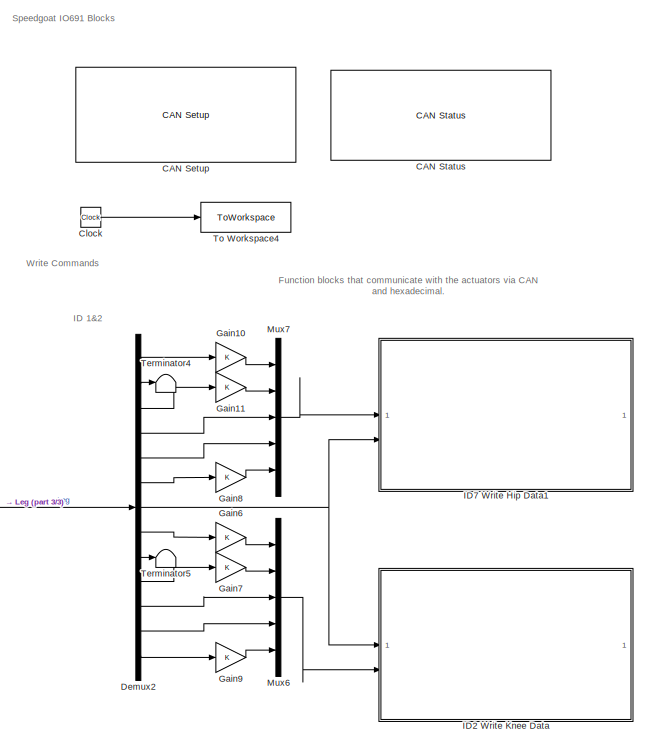
[diagram: root canvas - part 1/3, top right region]
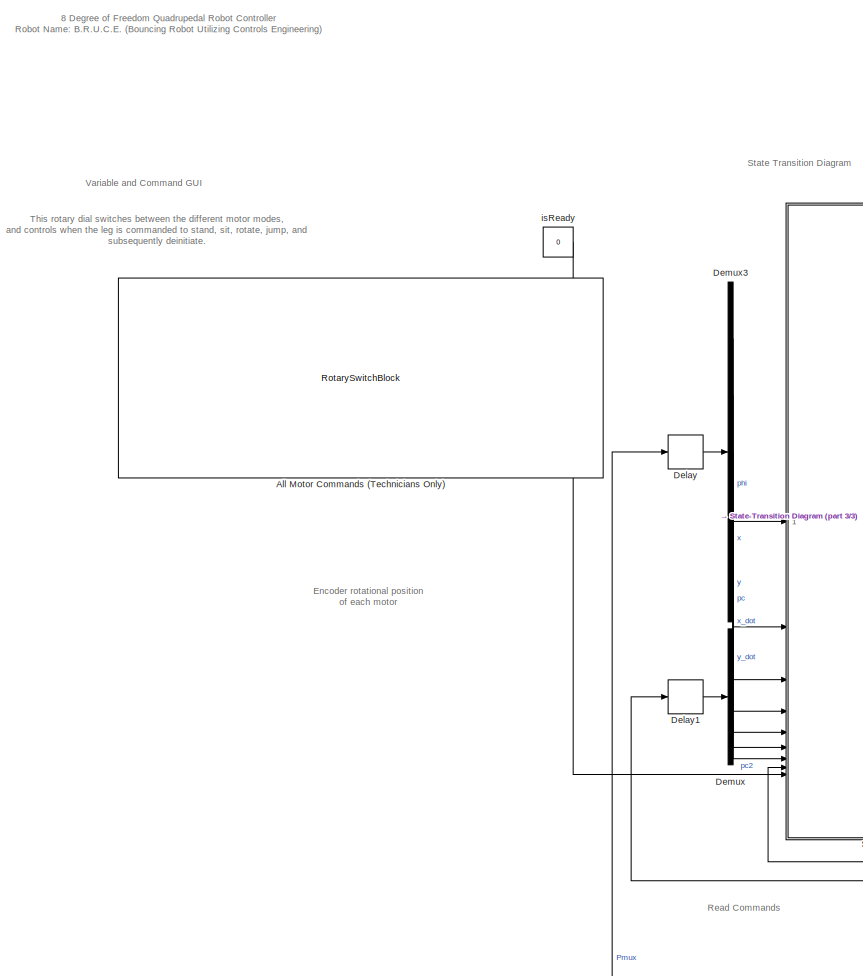
[diagram: root canvas - part 2/3, middle left region]
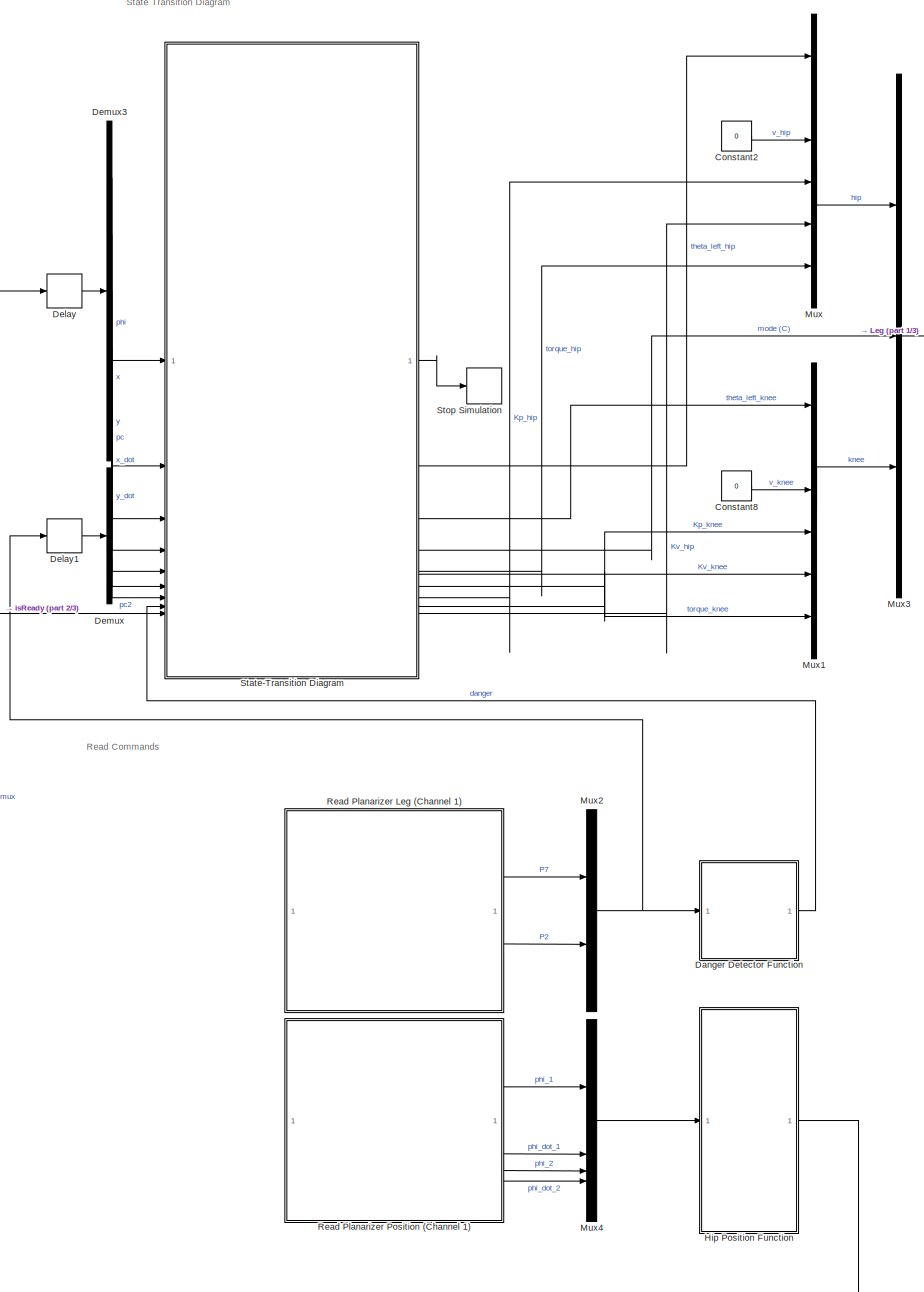
[diagram: root canvas - part 3/3, center side, full height]
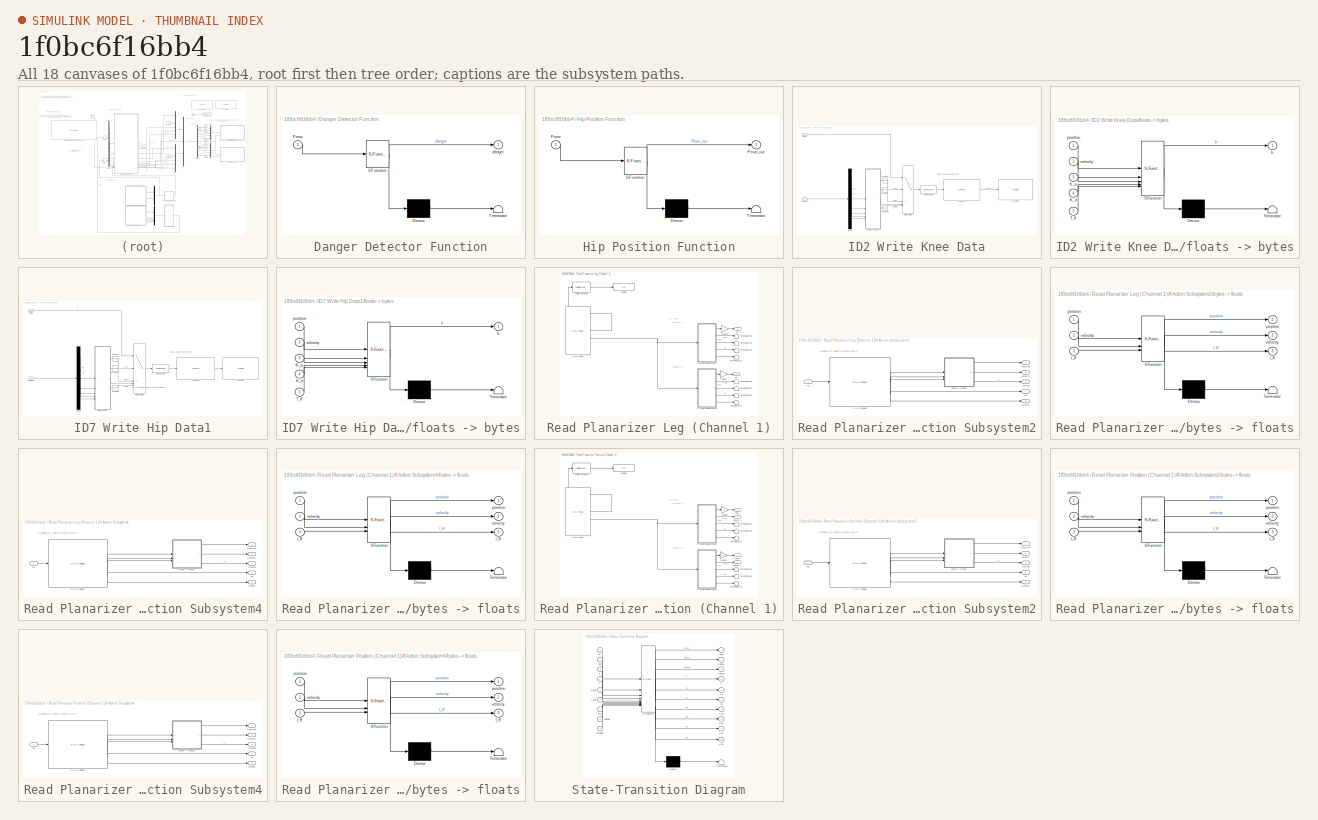
[diagram: thumbnail index - all 18 canvases of the model, root first then tree order]
MODEL slx_1f0bc6f16bb4
KIND model
CONFIG AbsTol = auto
CONFIG EnableMultiTasking = off
CONFIG FixedStep = 0.005
CONFIG MaxStep = auto
CONFIG MinStep = auto
CONFIG RelTol = 1e-3
CONFIG SampleTimeConstraint = Unconstrained
CONFIG SolverName = FixedStepAuto
CONFIG StartTime = 0.0
CONFIG StopTime = inf
BLOCK [RotarySwitchBlock] All Motor Commands (Technicians Only) 
BLOCK [Reference] CAN Setup   REF=speedgoatlib_IO691/Legacy/CAN Setup 
  SourceBlock = speedgoatlib_IO691/Legacy/CAN Setup
  SourceProductName = Simulink Real-Time: Speedgoat I/O Blockset
  SourceType = setup_IO691
BLOCK [Reference] CAN Status  REF=speedgoatlib_IO691/Legacy/CAN Status
  SourceBlock = speedgoatlib_IO691/Legacy/CAN Status
  SourceProductName = Simulink Real-Time: Speedgoat I/O Blockset
  SourceType = status_IO691
  UserDataPersistent = on
BLOCK [Clock] Clock
BLOCK [Constant] Constant2
  Value = 0
BLOCK [Constant] Constant8
  Value = 0
BLOCK [SubSystem] Danger Detector Function
  ErrorFcn = Stateflow.Translate.translate
  PermitHierarchicalResolution = ExplicitOnly
  SFBlockType = MATLAB Function
  TreatAsAtomicUnit = on
BLOCK [Demux] Danger Detector Function/ Demux 
  Outputs = 1
BLOCK [S-Function] Danger Detector Function/ SFunction 
  EnableBusSupport = on
  FunctionName = sf_sfun
  PortCounts = [1 2]
  SFcnIsStateOwnerBlock = off
  SFunctionDeploymentMode = off
  Tag = Stateflow S-Function 6
BLOCK [Terminator] Danger Detector Function/ Terminator 
BLOCK [Inport] Danger Detector Function/Pmux
BLOCK [Outport] Danger Detector Function/danger
BLOCK [Delay] Delay
  DelayLength = 1
  InputPortMap = u0
BLOCK [Delay] Delay1
  DelayLength = 1
  InputPortMap = u0
BLOCK [Demux] Demux
  Outputs = 2
BLOCK [Demux] Demux2
  Outputs = 13
BLOCK [Demux] Demux3
  Outputs = 5
BLOCK [Gain] Gain10
BLOCK [Gain] Gain11
BLOCK [Gain] Gain6
BLOCK [Gain] Gain7
BLOCK [Gain] Gain8
BLOCK [Gain] Gain9
BLOCK [SubSystem] Hip Position Function
  ErrorFcn = Stateflow.Translate.translate
  PermitHierarchicalResolution = ExplicitOnly
  SFBlockType = MATLAB Function
  TreatAsAtomicUnit = on
BLOCK [Demux] Hip Position Function/ Demux 
  Outputs = 1
BLOCK [S-Function] Hip Position Function/ SFunction 
  EnableBusSupport = on
  FunctionName = sf_sfun
  PortCounts = [1 2]
  SFcnIsStateOwnerBlock = off
  SFunctionDeploymentMode = off
  Tag = Stateflow S-Function 9
BLOCK [Terminator] Hip Position Function/ Terminator 
BLOCK [Inport] Hip Position Function/Pmux
BLOCK [Outport] Hip Position Function/Pmux_out
BLOCK [SubSystem] ID2 Write Knee Data
  TreatAsAtomicUnit = on
BLOCK [Reference] ID2 Write Knee Data/Byte Packing  REF=slrealtimeutilitieslib/Byte Packing
  SourceBlock = slrealtimeutilitieslib/Byte Packing
  SourceType = slrealtimebytepacking
BLOCK [Reference] ID2 Write Knee Data/CAN Pack1  REF=canmsglib/CAN Pack
  SourceBlock = canmsglib/CAN Pack
  SourceType = CAN Pack
BLOCK [Reference] ID2 Write Knee Data/CAN Write1  REF=speedgoatlib_IO691/Legacy/CAN Write
  SourceBlock = speedgoatlib_IO691/Legacy/CAN Write
  SourceProductName = Simulink Real-Time: Speedgoat I/O Blockset
  SourceType = write_IO691
BLOCK [Inport] ID2 Write Knee Data/Command
  Port = 2
BLOCK [Constant] ID2 Write Knee Data/Constant
  Value = [0xFF, 0xFF, 0xFF, 0xFF, 0xFF, 0xFF, 0xFF, 0xFE]
BLOCK [Constant] ID2 Write Knee Data/Constant1
  Value = [0xFF, 0xFF, 0xFF, 0xFF, 0xFF, 0xFF, 0xFF, 0xFC]
BLOCK [Constant] ID2 Write Knee Data/Constant2
  Value = [0xFF, 0xFF, 0xFF, 0xFF, 0xFF, 0xFF, 0xFF, 0xFD]
BLOCK [Demux] ID2 Write Knee Data/Demux
  Outputs = 5
BLOCK [Inport] ID2 Write Knee Data/Mode
BLOCK [MultiPortSwitch] ID2 Write Knee Data/Multiport Switch
  DiagnosticForDefault = None
  InputSameDT = off
  Inputs = 4
  SaturateOnIntegerOverflow = off
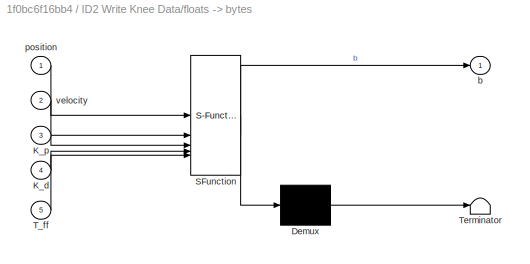
BLOCK [SubSystem] ID2 Write Knee Data/floats -> bytes
  ErrorFcn = Stateflow.Translate.translate
  PermitHierarchicalResolution = ExplicitOnly
  SFBlockType = MATLAB Function
  TreatAsAtomicUnit = on
BLOCK [Demux] ID2 Write Knee Data/floats -> bytes/ Demux 
  Outputs = 1
BLOCK [S-Function] ID2 Write Knee Data/floats -> bytes/ SFunction 
  EnableBusSupport = on
  FunctionName = sf_sfun
  PortCounts = [5 2]
  SFcnIsStateOwnerBlock = off
  SFunctionDeploymentMode = off
  Tag = Stateflow S-Function 13
BLOCK [Terminator] ID2 Write Knee Data/floats -> bytes/ Terminator 
BLOCK [Inport] ID2 Write Knee Data/floats -> bytes/K_d
  Port = 4
BLOCK [Inport] ID2 Write Knee Data/floats -> bytes/K_p
  Port = 3
BLOCK [Inport] ID2 Write Knee Data/floats -> bytes/T_ff
  Port = 5
BLOCK [Outport] ID2 Write Knee Data/floats -> bytes/b
BLOCK [Inport] ID2 Write Knee Data/floats -> bytes/position
BLOCK [Inport] ID2 Write Knee Data/floats -> bytes/velocity
  Port = 2
BLOCK [SubSystem] ID7 Write Hip Data1
  TreatAsAtomicUnit = on
BLOCK [Reference] ID7 Write Hip Data1/Byte Packing  REF=slrealtimeutilitieslib/Byte Packing
  SourceBlock = slrealtimeutilitieslib/Byte Packing
  SourceType = slrealtimebytepacking
BLOCK [Reference] ID7 Write Hip Data1/CAN Pack1  REF=canmsglib/CAN Pack
  SourceBlock = canmsglib/CAN Pack
  SourceType = CAN Pack
BLOCK [Reference] ID7 Write Hip Data1/CAN Write1  REF=speedgoatlib_IO691/Legacy/CAN Write
  SourceBlock = speedgoatlib_IO691/Legacy/CAN Write
  SourceProductName = Simulink Real-Time: Speedgoat I/O Blockset
  SourceType = write_IO691
BLOCK [Inport] ID7 Write Hip Data1/Command
BLOCK [Constant] ID7 Write Hip Data1/Constant
  Value = [0xFF, 0xFF, 0xFF, 0xFF, 0xFF, 0xFF, 0xFF, 0xFE]
BLOCK [Constant] ID7 Write Hip Data1/Constant1
  Value = [0xFF, 0xFF, 0xFF, 0xFF, 0xFF, 0xFF, 0xFF, 0xFC]
BLOCK [Constant] ID7 Write Hip Data1/Constant2
  Value = [0xFF, 0xFF, 0xFF, 0xFF, 0xFF, 0xFF, 0xFF, 0xFD]
BLOCK [Demux] ID7 Write Hip Data1/Demux
  Outputs = 5
BLOCK [Inport] ID7 Write Hip Data1/Mode
  Port = 2
BLOCK [MultiPortSwitch] ID7 Write Hip Data1/Multiport Switch
  DiagnosticForDefault = None
  InputSameDT = off
  Inputs = 4
  SaturateOnIntegerOverflow = off
BLOCK [SubSystem] ID7 Write Hip Data1/floats -> bytes
  ErrorFcn = Stateflow.Translate.translate
  PermitHierarchicalResolution = ExplicitOnly
  SFBlockType = MATLAB Function
  TreatAsAtomicUnit = on
BLOCK [Demux] ID7 Write Hip Data1/floats -> bytes/ Demux 
  Outputs = 1
BLOCK [S-Function] ID7 Write Hip Data1/floats -> bytes/ SFunction 
  EnableBusSupport = on
  FunctionName = sf_sfun
  PortCounts = [5 2]
  SFcnIsStateOwnerBlock = off
  SFunctionDeploymentMode = off
  Tag = Stateflow S-Function 4
BLOCK [Terminator] ID7 Write Hip Data1/floats -> bytes/ Terminator 
BLOCK [Inport] ID7 Write Hip Data1/floats -> bytes/K_d
  Port = 4
BLOCK [Inport] ID7 Write Hip Data1/floats -> bytes/K_p
  Port = 3
BLOCK [Inport] ID7 Write Hip Data1/floats -> bytes/T_ff
  Port = 5
BLOCK [Outport] ID7 Write Hip Data1/floats -> bytes/b
BLOCK [Inport] ID7 Write Hip Data1/floats -> bytes/position
BLOCK [Inport] ID7 Write Hip Data1/floats -> bytes/velocity
  Port = 2
BLOCK [Mux] Mux
  DisplayOption = bar
  Inputs = 6
BLOCK [Mux] Mux1
  DisplayOption = bar
  Inputs = 6
BLOCK [Mux] Mux2
  DisplayOption = bar
  Inputs = 2
BLOCK [Mux] Mux3
  DisplayOption = bar
  Inputs = 3
BLOCK [Mux] Mux4
  DisplayOption = bar
BLOCK [Mux] Mux6
  DisplayOption = bar
  Inputs = 5
BLOCK [Mux] Mux7
  DisplayOption = bar
  Inputs = 5
BLOCK [SubSystem] Read Planarizer Leg (Channel 1)
  TreatAsAtomicUnit = on
BLOCK [Reference] Read Planarizer Leg (Channel 1)/CAN Read  REF=speedgoatlib_IO691/Legacy/CAN Read
  SourceBlock = speedgoatlib_IO691/Legacy/CAN Read
  SourceProductName = Simulink Real-Time: Speedgoat I/O Blockset
  SourceType = read_IO691
BLOCK [Display] Read Planarizer Leg (Channel 1)/Display
  Decimation = 1
BLOCK [Gain] Read Planarizer Leg (Channel 1)/Gain29
BLOCK [Gain] Read Planarizer Leg (Channel 1)/Gain30
BLOCK [SubSystem] Read Planarizer Leg (Channel 1)/If Action Subsystem2
  TreatAsAtomicUnit = on
BLOCK [Reference] Read Planarizer Leg (Channel 1)/If Action Subsystem2/CAN Unpack  REF=canmsglib/CAN Unpack
  SourceBlock = canmsglib/CAN Unpack
  SourceType = CAN Unpack
BLOCK [Outport] Read Planarizer Leg (Channel 1)/If Action Subsystem2/Current
  Port = 3
BLOCK [Outport] Read Planarizer Leg (Channel 1)/If Action Subsystem2/ID
  Port = 4
BLOCK [Inport] Read Planarizer Leg (Channel 1)/If Action Subsystem2/In1
BLOCK [Outport] Read Planarizer Leg (Channel 1)/If Action Subsystem2/Position
BLOCK [Outport] Read Planarizer Leg (Channel 1)/If Action Subsystem2/Status
  Port = 5
BLOCK [Outport] Read Planarizer Leg (Channel 1)/If Action Subsystem2/Velocity
  Port = 2
BLOCK [SubSystem] Read Planarizer Leg (Channel 1)/If Action Subsystem2/bytes -> floats
  ErrorFcn = Stateflow.Translate.translate
  PermitHierarchicalResolution = ExplicitOnly
  SFBlockType = MATLAB Function
  TreatAsAtomicUnit = on
BLOCK [Demux] Read Planarizer Leg (Channel 1)/If Action Subsystem2/bytes -> floats/ Demux 
  Outputs = 1
BLOCK [S-Function] Read Planarizer Leg (Channel 1)/If Action Subsystem2/bytes -> floats/ SFunction 
  EnableBusSupport = on
  FunctionName = sf_sfun
  PortCounts = [3 4]
  SFcnIsStateOwnerBlock = off
  SFunctionDeploymentMode = off
  Tag = Stateflow S-Function 2
BLOCK [Terminator] Read Planarizer Leg (Channel 1)/If Action Subsystem2/bytes -> floats/ Terminator 
BLOCK [Outport] Read Planarizer Leg (Channel 1)/If Action Subsystem2/bytes -> floats/I_ff
  Port = 3
BLOCK [Inport] Read Planarizer Leg (Channel 1)/If Action Subsystem2/bytes -> floats/I_ff 
  Port = 3
BLOCK [Outport] Read Planarizer Leg (Channel 1)/If Action Subsystem2/bytes -> floats/position
BLOCK [Inport] Read Planarizer Leg (Channel 1)/If Action Subsystem2/bytes -> floats/position 
BLOCK [Outport] Read Planarizer Leg (Channel 1)/If Action Subsystem2/bytes -> floats/velocity
  Port = 2
BLOCK [Inport] Read Planarizer Leg (Channel 1)/If Action Subsystem2/bytes -> floats/velocity 
  Port = 2
BLOCK [SubSystem] Read Planarizer Leg (Channel 1)/If Action Subsystem4
  TreatAsAtomicUnit = on
BLOCK [Reference] Read Planarizer Leg (Channel 1)/If Action Subsystem4/CAN Unpack  REF=canmsglib/CAN Unpack
  SourceBlock = canmsglib/CAN Unpack
  SourceType = CAN Unpack
BLOCK [Outport] Read Planarizer Leg (Channel 1)/If Action Subsystem4/Current
  Port = 3
BLOCK [Outport] Read Planarizer Leg (Channel 1)/If Action Subsystem4/ID
  Port = 4
BLOCK [Inport] Read Planarizer Leg (Channel 1)/If Action Subsystem4/In1
BLOCK [Outport] Read Planarizer Leg (Channel 1)/If Action Subsystem4/Position
BLOCK [Outport] Read Planarizer Leg (Channel 1)/If Action Subsystem4/Status
  Port = 5
BLOCK [Outport] Read Planarizer Leg (Channel 1)/If Action Subsystem4/Velocity
  Port = 2
BLOCK [SubSystem] Read Planarizer Leg (Channel 1)/If Action Subsystem4/bytes -> floats
  ErrorFcn = Stateflow.Translate.translate
  PermitHierarchicalResolution = ExplicitOnly
  SFBlockType = MATLAB Function
  TreatAsAtomicUnit = on
BLOCK [Demux] Read Planarizer Leg (Channel 1)/If Action Subsystem4/bytes -> floats/ Demux 
  Outputs = 1
BLOCK [S-Function] Read Planarizer Leg (Channel 1)/If Action Subsystem4/bytes -> floats/ SFunction 
  EnableBusSupport = on
  FunctionName = sf_sfun
  PortCounts = [3 4]
  SFcnIsStateOwnerBlock = off
  SFunctionDeploymentMode = off
  Tag = Stateflow S-Function 1
BLOCK [Terminator] Read Planarizer Leg (Channel 1)/If Action Subsystem4/bytes -> floats/ Terminator 
BLOCK [Outport] Read Planarizer Leg (Channel 1)/If Action Subsystem4/bytes -> floats/I_ff
  Port = 3
BLOCK [Inport] Read Planarizer Leg (Channel 1)/If Action Subsystem4/bytes -> floats/I_ff 
  Port = 3
BLOCK [Outport] Read Planarizer Leg (Channel 1)/If Action Subsystem4/bytes -> floats/position
BLOCK [Inport] Read Planarizer Leg (Channel 1)/If Action Subsystem4/bytes -> floats/position 
BLOCK [Outport] Read Planarizer Leg (Channel 1)/If Action Subsystem4/bytes -> floats/velocity
  Port = 2
BLOCK [Inport] Read Planarizer Leg (Channel 1)/If Action Subsystem4/bytes -> floats/velocity 
  Port = 2
BLOCK [Outport] Read Planarizer Leg (Channel 1)/P2
  Port = 2
BLOCK [Outport] Read Planarizer Leg (Channel 1)/P7
BLOCK [Terminator] Read Planarizer Leg (Channel 1)/Terminator16
BLOCK [Terminator] Read Planarizer Leg (Channel 1)/Terminator17
BLOCK [Terminator] Read Planarizer Leg (Channel 1)/Terminator18
BLOCK [Terminator] Read Planarizer Leg (Channel 1)/Terminator19
BLOCK [Terminator] Read Planarizer Leg (Channel 1)/Terminator20
BLOCK [Terminator] Read Planarizer Leg (Channel 1)/Terminator21
BLOCK [Terminator] Read Planarizer Leg (Channel 1)/Terminator22
BLOCK [Terminator] Read Planarizer Leg (Channel 1)/Terminator23
BLOCK [WhileIterator] Read Planarizer Leg (Channel 1)/While Iterator
  MaxIters = -1
  ResetStates = reset
  ShowIterationPort = on
  WhileBlockType = do-while
BLOCK [SubSystem] Read Planarizer Position (Channel 1)
  TreatAsAtomicUnit = on
BLOCK [Reference] Read Planarizer Position (Channel 1)/CAN Read  REF=speedgoatlib_IO691/Legacy/CAN Read
  SourceBlock = speedgoatlib_IO691/Legacy/CAN Read
  SourceProductName = Simulink Real-Time: Speedgoat I/O Blockset
  SourceType = read_IO691
BLOCK [Display] Read Planarizer Position (Channel 1)/Display
  Decimation = 1
BLOCK [Gain] Read Planarizer Position (Channel 1)/Gain29
BLOCK [Gain] Read Planarizer Position (Channel 1)/Gain30
BLOCK [SubSystem] Read Planarizer Position (Channel 1)/If Action Subsystem2
  TreatAsAtomicUnit = on
BLOCK [Reference] Read Planarizer Position (Channel 1)/If Action Subsystem2/CAN Unpack  REF=canmsglib/CAN Unpack
  SourceBlock = canmsglib/CAN Unpack
  SourceType = CAN Unpack
BLOCK [Outport] Read Planarizer Position (Channel 1)/If Action Subsystem2/Current
  Port = 3
BLOCK [Outport] Read Planarizer Position (Channel 1)/If Action Subsystem2/ID
  Port = 4
BLOCK [Inport] Read Planarizer Position (Channel 1)/If Action Subsystem2/In1
BLOCK [Outport] Read Planarizer Position (Channel 1)/If Action Subsystem2/Position
BLOCK [Outport] Read Planarizer Position (Channel 1)/If Action Subsystem2/Status
  Port = 5
BLOCK [Outport] Read Planarizer Position (Channel 1)/If Action Subsystem2/Velocity
  Port = 2
BLOCK [SubSystem] Read Planarizer Position (Channel 1)/If Action Subsystem2/bytes -> floats
  ErrorFcn = Stateflow.Translate.translate
  PermitHierarchicalResolution = ExplicitOnly
  SFBlockType = MATLAB Function
  TreatAsAtomicUnit = on
BLOCK [Demux] Read Planarizer Position (Channel 1)/If Action Subsystem2/bytes -> floats/ Demux 
  Outputs = 1
BLOCK [S-Function] Read Planarizer Position (Channel 1)/If Action Subsystem2/bytes -> floats/ SFunction 
  EnableBusSupport = on
  FunctionName = sf_sfun
  PortCounts = [3 4]
  SFcnIsStateOwnerBlock = off
  SFunctionDeploymentMode = off
  Tag = Stateflow S-Function 3
BLOCK [Terminator] Read Planarizer Position (Channel 1)/If Action Subsystem2/bytes -> floats/ Terminator 
BLOCK [Outport] Read Planarizer Position (Channel 1)/If Action Subsystem2/bytes -> floats/I_ff
  Port = 3
BLOCK [Inport] Read Planarizer Position (Channel 1)/If Action Subsystem2/bytes -> floats/I_ff 
  Port = 3
BLOCK [Outport] Read Planarizer Position (Channel 1)/If Action Subsystem2/bytes -> floats/position
BLOCK [Inport] Read Planarizer Position (Channel 1)/If Action Subsystem2/bytes -> floats/position 
BLOCK [Outport] Read Planarizer Position (Channel 1)/If Action Subsystem2/bytes -> floats/velocity
  Port = 2
BLOCK [Inport] Read Planarizer Position (Channel 1)/If Action Subsystem2/bytes -> floats/velocity 
  Port = 2
BLOCK [SubSystem] Read Planarizer Position (Channel 1)/If Action Subsystem4
  TreatAsAtomicUnit = on
BLOCK [Reference] Read Planarizer Position (Channel 1)/If Action Subsystem4/CAN Unpack  REF=canmsglib/CAN Unpack
  SourceBlock = canmsglib/CAN Unpack
  SourceType = CAN Unpack
BLOCK [Outport] Read Planarizer Position (Channel 1)/If Action Subsystem4/Current
  Port = 3
BLOCK [Outport] Read Planarizer Position (Channel 1)/If Action Subsystem4/ID
  Port = 4
BLOCK [Inport] Read Planarizer Position (Channel 1)/If Action Subsystem4/In1
BLOCK [Outport] Read Planarizer Position (Channel 1)/If Action Subsystem4/Position
BLOCK [Outport] Read Planarizer Position (Channel 1)/If Action Subsystem4/Status
  Port = 5
BLOCK [Outport] Read Planarizer Position (Channel 1)/If Action Subsystem4/Velocity
  Port = 2
BLOCK [SubSystem] Read Planarizer Position (Channel 1)/If Action Subsystem4/bytes -> floats
  ErrorFcn = Stateflow.Translate.translate
  PermitHierarchicalResolution = ExplicitOnly
  SFBlockType = MATLAB Function
  TreatAsAtomicUnit = on
BLOCK [Demux] Read Planarizer Position (Channel 1)/If Action Subsystem4/bytes -> floats/ Demux 
  Outputs = 1
BLOCK [S-Function] Read Planarizer Position (Channel 1)/If Action Subsystem4/bytes -> floats/ SFunction 
  EnableBusSupport = on
  FunctionName = sf_sfun
  PortCounts = [3 4]
  SFcnIsStateOwnerBlock = off
  SFunctionDeploymentMode = off
  Tag = Stateflow S-Function 5
BLOCK [Terminator] Read Planarizer Position (Channel 1)/If Action Subsystem4/bytes -> floats/ Terminator 
BLOCK [Outport] Read Planarizer Position (Channel 1)/If Action Subsystem4/bytes -> floats/I_ff
  Port = 3
BLOCK [Inport] Read Planarizer Position (Channel 1)/If Action Subsystem4/bytes -> floats/I_ff 
  Port = 3
BLOCK [Outport] Read Planarizer Position (Channel 1)/If Action Subsystem4/bytes -> floats/position
BLOCK [Inport] Read Planarizer Position (Channel 1)/If Action Subsystem4/bytes -> floats/position 
BLOCK [Outport] Read Planarizer Position (Channel 1)/If Action Subsystem4/bytes -> floats/velocity
  Port = 2
BLOCK [Inport] Read Planarizer Position (Channel 1)/If Action Subsystem4/bytes -> floats/velocity 
  Port = 2
BLOCK [Terminator] Read Planarizer Position (Channel 1)/Terminator16
BLOCK [Terminator] Read Planarizer Position (Channel 1)/Terminator17
BLOCK [Terminator] Read Planarizer Position (Channel 1)/Terminator19
BLOCK [Terminator] Read Planarizer Position (Channel 1)/Terminator20
BLOCK [Terminator] Read Planarizer Position (Channel 1)/Terminator21
BLOCK [Terminator] Read Planarizer Position (Channel 1)/Terminator23
BLOCK [WhileIterator] Read Planarizer Position (Channel 1)/While Iterator
  MaxIters = -1
  ResetStates = reset
  ShowIterationPort = on
  WhileBlockType = do-while
BLOCK [Outport] Read Planarizer Position (Channel 1)/phi_1
BLOCK [Outport] Read Planarizer Position (Channel 1)/phi_2
  Port = 3
BLOCK [Outport] Read Planarizer Position (Channel 1)/phi_dot_1
  Port = 2
BLOCK [Outport] Read Planarizer Position (Channel 1)/phi_dot_2
  Port = 4
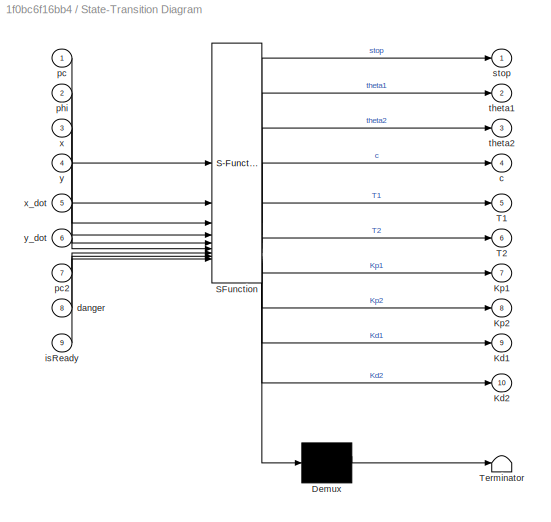
BLOCK [SubSystem] State-Transition Diagram
  ErrorFcn = Stateflow.Translate.translate
  PermitHierarchicalResolution = ExplicitOnly
  PortSchema = {"entries":[{"content":{"sides":[{"content":{"connectorIds":["In9","In2","In3","In4","In5","In6","In1","In7","In8"]},"type":"ConnectorPlacement.EquallySpacedRectSide","uuid":"09499f21-f50c-4ce4-914e-8b9942bcc246"},{"content":{"connectorIds":["Out2","Out7","Out9","Out5","Out4","Out1","Out3","Out8","Out10","Out6"],"side":"RIGHT"},"type":"ConnectorPlacement.EquallySpacedRectSide","uuid":"b935e908-ace...<+334ch>
  SFBlockType = Chart
  TreatAsAtomicUnit = on
BLOCK [Demux] State-Transition Diagram/ Demux 
  Outputs = 1
BLOCK [S-Function] State-Transition Diagram/ SFunction 
  EnableBusSupport = on
  FunctionName = sf_sfun
  PortCounts = [9 11]
  SFcnIsStateOwnerBlock = off
  SFunctionDeploymentMode = off
  Tag = Stateflow S-Function 8
BLOCK [Terminator] State-Transition Diagram/ Terminator 
BLOCK [Outport] State-Transition Diagram/Kd1
  Port = 9
BLOCK [Outport] State-Transition Diagram/Kd2
  Port = 10
BLOCK [Outport] State-Transition Diagram/Kp1
  Port = 7
BLOCK [Outport] State-Transition Diagram/Kp2
  Port = 8
BLOCK [Outport] State-Transition Diagram/T1
  Port = 5
BLOCK [Outport] State-Transition Diagram/T2
  Port = 6
BLOCK [Outport] State-Transition Diagram/c
  Port = 4
BLOCK [Inport] State-Transition Diagram/danger
  Port = 8
BLOCK [Inport] State-Transition Diagram/isReady
  Port = 9
BLOCK [Inport] State-Transition Diagram/pc
BLOCK [Inport] State-Transition Diagram/pc2
  Port = 7
BLOCK [Inport] State-Transition Diagram/phi
  Port = 2
BLOCK [Outport] State-Transition Diagram/stop
BLOCK [Outport] State-Transition Diagram/theta1
  Port = 2
BLOCK [Outport] State-Transition Diagram/theta2
  Port = 3
BLOCK [Inport] State-Transition Diagram/x
  Port = 3
BLOCK [Inport] State-Transition Diagram/x_dot
  Port = 5
BLOCK [Inport] State-Transition Diagram/y
  Port = 4
BLOCK [Inport] State-Transition Diagram/y_dot
  Port = 6
BLOCK [Stop] Stop Simulation
BLOCK [Terminator] Terminator4
BLOCK [Terminator] Terminator5
BLOCK [ToWorkspace] To Workspace4
  FixptAsFi = on
  MaxDataPoints = inf
  SampleTime = -1
  VariableName = timeout
BLOCK [Constant] isReady
  Value = 0
ANNOTATION (root): State Transition Diagram
ANNOTATION (root): 8 Degree of Freedom Quadrupedal Robot Controller Robot Name: B.R.U.C.E. (Bouncing Robot Utilizing Controls Engineering)
ANNOTATION (root): Encoder rotational position of each motor
ANNOTATION (root): Function blocks that communicate with the actuators via CAN and hexadecimal.
ANNOTATION (root): ID 1&2
ANNOTATION (root): Read Commands
ANNOTATION (root): Speedgoat IO691 Blocks
ANNOTATION (root): This rotary dial switches between the different motor modes, and controls when the leg is commanded to stand, sit, rotate, jump, and subsequently deinitiate.
ANNOTATION (root): Variable and Command GUI
ANNOTATION (root): Write Commands
ANNOTATION ID2 Write Knee Data: Standard ID Needs to Match Can ID
ANNOTATION ID7 Write Hip Data1: Converts inputted data to an 8-bit unsigned integer
ANNOTATION ID7 Write Hip Data1: Standard ID Needs to Match Can ID
ANNOTATION Read Planarizer Leg (Channel 1): HIP ID 7
ANNOTATION Read Planarizer Leg (Channel 1): ID 7 & 2
ANNOTATION Read Planarizer Leg (Channel 1): KNEE ID 2
ANNOTATION Read Planarizer Leg (Channel 1)/If Action Subsystem2: Standard ID Needs to Match Can ID
ANNOTATION Read Planarizer Leg (Channel 1)/If Action Subsystem4: Standard ID Needs to Match Can ID
ANNOTATION Read Planarizer Position (Channel 1): HIP ID 7
ANNOTATION Read Planarizer Position (Channel 1): ID 1 & 3
ANNOTATION Read Planarizer Position (Channel 1): KNEE ID 2
ANNOTATION Read Planarizer Position (Channel 1)/If Action Subsystem2: Standard ID Needs to Match Can ID
ANNOTATION Read Planarizer Position (Channel 1)/If Action Subsystem4: Standard ID Needs to Match Can ID
LINE Clock:1 -> To Workspace4:1
LINE Constant2:1 -> Mux:3
LINE Constant8:1 -> Mux1:3
LINE Danger Detector Function:1 -> State-Transition Diagram:8
LINE Delay1:1 -> Demux:1
LINE Delay:1 -> Demux3:1
LINE Demux2:1 -> Gain10:1
LINE Demux2:10 -> Gain7:1
LINE Demux2:11 -> Mux6:3
LINE Demux2:12 -> Mux6:4
LINE Demux2:13 -> Gain9:1
LINE Demux2:2 -> Terminator4:1
LINE Demux2:3 -> Gain11:1
LINE Demux2:4 -> Mux7:3
LINE Demux2:5 -> Mux7:4
LINE Demux2:6 -> Gain8:1
NET Demux2:7 -> ID2 Write Knee Data:1, ID7 Write Hip Data1:2
LINE Demux2:8 -> Gain6:1
LINE Demux2:9 -> Terminator5:1
LINE Demux3:1 -> State-Transition Diagram:2
LINE Demux3:2 -> State-Transition Diagram:3
LINE Demux3:3 -> State-Transition Diagram:4
LINE Demux3:4 -> State-Transition Diagram:5
LINE Demux3:5 -> State-Transition Diagram:6
LINE Demux:1 -> State-Transition Diagram:1
LINE Demux:2 -> State-Transition Diagram:7
LINE Gain10:1 -> Mux7:1
LINE Gain11:1 -> Mux7:2
LINE Gain6:1 -> Mux6:1
LINE Gain7:1 -> Mux6:2
LINE Gain8:1 -> Mux7:5
LINE Gain9:1 -> Mux6:5
LINE Hip Position Function:1 -> Delay:1
LINE ID2 Write Knee Data/Byte Packing:1 -> ID2 Write Knee Data/CAN Pack1:1
LINE ID2 Write Knee Data/CAN Pack1:1 -> ID2 Write Knee Data/CAN Write1:1
LINE ID2 Write Knee Data/Command:1 -> ID2 Write Knee Data/Demux:1
LINE ID2 Write Knee Data/Constant1:1 -> ID2 Write Knee Data/Multiport Switch:3
LINE ID2 Write Knee Data/Constant2:1 -> ID2 Write Knee Data/Multiport Switch:5
LINE ID2 Write Knee Data/Constant:1 -> ID2 Write Knee Data/Multiport Switch:2
LINE ID2 Write Knee Data/Demux:1 -> ID2 Write Knee Data/floats -> bytes:1
LINE ID2 Write Knee Data/Demux:2 -> ID2 Write Knee Data/floats -> bytes:2
LINE ID2 Write Knee Data/Demux:3 -> ID2 Write Knee Data/floats -> bytes:3
LINE ID2 Write Knee Data/Demux:4 -> ID2 Write Knee Data/floats -> bytes:4
LINE ID2 Write Knee Data/Demux:5 -> ID2 Write Knee Data/floats -> bytes:5
LINE ID2 Write Knee Data/Mode:1 -> ID2 Write Knee Data/Multiport Switch:1
LINE ID2 Write Knee Data/Multiport Switch:1 -> ID2 Write Knee Data/Byte Packing:1
LINE ID2 Write Knee Data/floats -> bytes:1 -> ID2 Write Knee Data/Multiport Switch:4
LINE ID7 Write Hip Data1/Byte Packing:1 -> ID7 Write Hip Data1/CAN Pack1:1
LINE ID7 Write Hip Data1/CAN Pack1:1 -> ID7 Write Hip Data1/CAN Write1:1
LINE ID7 Write Hip Data1/Command:1 -> ID7 Write Hip Data1/Demux:1
LINE ID7 Write Hip Data1/Constant1:1 -> ID7 Write Hip Data1/Multiport Switch:3
LINE ID7 Write Hip Data1/Constant2:1 -> ID7 Write Hip Data1/Multiport Switch:5
LINE ID7 Write Hip Data1/Constant:1 -> ID7 Write Hip Data1/Multiport Switch:2
LINE ID7 Write Hip Data1/Demux:1 -> ID7 Write Hip Data1/floats -> bytes:1
LINE ID7 Write Hip Data1/Demux:2 -> ID7 Write Hip Data1/floats -> bytes:2
LINE ID7 Write Hip Data1/Demux:3 -> ID7 Write Hip Data1/floats -> bytes:3
LINE ID7 Write Hip Data1/Demux:4 -> ID7 Write Hip Data1/floats -> bytes:4
LINE ID7 Write Hip Data1/Demux:5 -> ID7 Write Hip Data1/floats -> bytes:5
LINE ID7 Write Hip Data1/Mode:1 -> ID7 Write Hip Data1/Multiport Switch:1
LINE ID7 Write Hip Data1/Multiport Switch:1 -> ID7 Write Hip Data1/Byte Packing:1
LINE ID7 Write Hip Data1/floats -> bytes:1 -> ID7 Write Hip Data1/Multiport Switch:4
LINE Mux1:1 -> Mux3:3
NET Mux2:1 -> Danger Detector Function:1, Delay1:1
LINE Mux3:1 -> Demux2:1
LINE Mux4:1 -> Hip Position Function:1
LINE Mux6:1 -> ID2 Write Knee Data:2
LINE Mux7:1 -> ID7 Write Hip Data1:1
LINE Mux:1 -> Mux3:1
LINE Read Planarizer Leg (Channel 1)/CAN Read:1 -> Read Planarizer Leg (Channel 1)/While Iterator:1
NET Read Planarizer Leg (Channel 1)/CAN Read:2 -> Read Planarizer Leg (Channel 1)/If Action Subsystem2:1, Read Planarizer Leg (Channel 1)/If Action Subsystem4:1
LINE Read Planarizer Leg (Channel 1)/Gain29:1 -> Read Planarizer Leg (Channel 1)/P7:1
LINE Read Planarizer Leg (Channel 1)/Gain30:1 -> Read Planarizer Leg (Channel 1)/P2:1
LINE Read Planarizer Leg (Channel 1)/If Action Subsystem2/CAN Unpack:1 -> Read Planarizer Leg (Channel 1)/If Action Subsystem2/bytes -> floats:1
LINE Read Planarizer Leg (Channel 1)/If Action Subsystem2/CAN Unpack:2 -> Read Planarizer Leg (Channel 1)/If Action Subsystem2/bytes -> floats:2
LINE Read Planarizer Leg (Channel 1)/If Action Subsystem2/CAN Unpack:3 -> Read Planarizer Leg (Channel 1)/If Action Subsystem2/bytes -> floats:3
LINE Read Planarizer Leg (Channel 1)/If Action Subsystem2/CAN Unpack:4 -> Read Planarizer Leg (Channel 1)/If Action Subsystem2/ID:1
LINE Read Planarizer Leg (Channel 1)/If Action Subsystem2/CAN Unpack:5 -> Read Planarizer Leg (Channel 1)/If Action Subsystem2/Status:1
LINE Read Planarizer Leg (Channel 1)/If Action Subsystem2/In1:1 -> Read Planarizer Leg (Channel 1)/If Action Subsystem2/CAN Unpack:1
LINE Read Planarizer Leg (Channel 1)/If Action Subsystem2/bytes -> floats:1 -> Read Planarizer Leg (Channel 1)/If Action Subsystem2/Position:1
LINE Read Planarizer Leg (Channel 1)/If Action Subsystem2/bytes -> floats:2 -> Read Planarizer Leg (Channel 1)/If Action Subsystem2/Velocity:1
LINE Read Planarizer Leg (Channel 1)/If Action Subsystem2/bytes -> floats:3 -> Read Planarizer Leg (Channel 1)/If Action Subsystem2/Current:1
LINE Read Planarizer Leg (Channel 1)/If Action Subsystem2:1 -> Read Planarizer Leg (Channel 1)/Gain30:1
LINE Read Planarizer Leg (Channel 1)/If Action Subsystem2:2 -> Read Planarizer Leg (Channel 1)/Terminator18:1
LINE Read Planarizer Leg (Channel 1)/If Action Subsystem2:3 -> Read Planarizer Leg (Channel 1)/Terminator19:1
LINE Read Planarizer Leg (Channel 1)/If Action Subsystem2:4 -> Read Planarizer Leg (Channel 1)/Terminator20:1
LINE Read Planarizer Leg (Channel 1)/If Action Subsystem2:5 -> Read Planarizer Leg (Channel 1)/Terminator21:1
LINE Read Planarizer Leg (Channel 1)/If Action Subsystem4/CAN Unpack:1 -> Read Planarizer Leg (Channel 1)/If Action Subsystem4/bytes -> floats:1
LINE Read Planarizer Leg (Channel 1)/If Action Subsystem4/CAN Unpack:2 -> Read Planarizer Leg (Channel 1)/If Action Subsystem4/bytes -> floats:2
LINE Read Planarizer Leg (Channel 1)/If Action Subsystem4/CAN Unpack:3 -> Read Planarizer Leg (Channel 1)/If Action Subsystem4/bytes -> floats:3
LINE Read Planarizer Leg (Channel 1)/If Action Subsystem4/CAN Unpack:4 -> Read Planarizer Leg (Channel 1)/If Action Subsystem4/ID:1
LINE Read Planarizer Leg (Channel 1)/If Action Subsystem4/CAN Unpack:5 -> Read Planarizer Leg (Channel 1)/If Action Subsystem4/Status:1
LINE Read Planarizer Leg (Channel 1)/If Action Subsystem4/In1:1 -> Read Planarizer Leg (Channel 1)/If Action Subsystem4/CAN Unpack:1
LINE Read Planarizer Leg (Channel 1)/If Action Subsystem4/bytes -> floats:1 -> Read Planarizer Leg (Channel 1)/If Action Subsystem4/Position:1
LINE Read Planarizer Leg (Channel 1)/If Action Subsystem4/bytes -> floats:2 -> Read Planarizer Leg (Channel 1)/If Action Subsystem4/Velocity:1
LINE Read Planarizer Leg (Channel 1)/If Action Subsystem4/bytes -> floats:3 -> Read Planarizer Leg (Channel 1)/If Action Subsystem4/Current:1
LINE Read Planarizer Leg (Channel 1)/If Action Subsystem4:1 -> Read Planarizer Leg (Channel 1)/Gain29:1
LINE Read Planarizer Leg (Channel 1)/If Action Subsystem4:2 -> Read Planarizer Leg (Channel 1)/Terminator22:1
LINE Read Planarizer Leg (Channel 1)/If Action Subsystem4:3 -> Read Planarizer Leg (Channel 1)/Terminator23:1
LINE Read Planarizer Leg (Channel 1)/If Action Subsystem4:4 -> Read Planarizer Leg (Channel 1)/Terminator16:1
LINE Read Planarizer Leg (Channel 1)/If Action Subsystem4:5 -> Read Planarizer Leg (Channel 1)/Terminator17:1
LINE Read Planarizer Leg (Channel 1)/While Iterator:1 -> Read Planarizer Leg (Channel 1)/Display:1
LINE Read Planarizer Leg (Channel 1):1 -> Mux2:1
LINE Read Planarizer Leg (Channel 1):2 -> Mux2:2
LINE Read Planarizer Position (Channel 1)/CAN Read:1 -> Read Planarizer Position (Channel 1)/While Iterator:1
NET Read Planarizer Position (Channel 1)/CAN Read:2 -> Read Planarizer Position (Channel 1)/If Action Subsystem2:1, Read Planarizer Position (Channel 1)/If Action Subsystem4:1
LINE Read Planarizer Position (Channel 1)/Gain29:1 -> Read Planarizer Position (Channel 1)/phi_1:1
LINE Read Planarizer Position (Channel 1)/Gain30:1 -> Read Planarizer Position (Channel 1)/phi_2:1
LINE Read Planarizer Position (Channel 1)/If Action Subsystem2/CAN Unpack:1 -> Read Planarizer Position (Channel 1)/If Action Subsystem2/bytes -> floats:1
LINE Read Planarizer Position (Channel 1)/If Action Subsystem2/CAN Unpack:2 -> Read Planarizer Position (Channel 1)/If Action Subsystem2/bytes -> floats:2
LINE Read Planarizer Position (Channel 1)/If Action Subsystem2/CAN Unpack:3 -> Read Planarizer Position (Channel 1)/If Action Subsystem2/bytes -> floats:3
LINE Read Planarizer Position (Channel 1)/If Action Subsystem2/CAN Unpack:4 -> Read Planarizer Position (Channel 1)/If Action Subsystem2/ID:1
LINE Read Planarizer Position (Channel 1)/If Action Subsystem2/CAN Unpack:5 -> Read Planarizer Position (Channel 1)/If Action Subsystem2/Status:1
LINE Read Planarizer Position (Channel 1)/If Action Subsystem2/In1:1 -> Read Planarizer Position (Channel 1)/If Action Subsystem2/CAN Unpack:1
LINE Read Planarizer Position (Channel 1)/If Action Subsystem2/bytes -> floats:1 -> Read Planarizer Position (Channel 1)/If Action Subsystem2/Position:1
LINE Read Planarizer Position (Channel 1)/If Action Subsystem2/bytes -> floats:2 -> Read Planarizer Position (Channel 1)/If Action Subsystem2/Velocity:1
LINE Read Planarizer Position (Channel 1)/If Action Subsystem2/bytes -> floats:3 -> Read Planarizer Position (Channel 1)/If Action Subsystem2/Current:1
LINE Read Planarizer Position (Channel 1)/If Action Subsystem2:1 -> Read Planarizer Position (Channel 1)/Gain30:1
LINE Read Planarizer Position (Channel 1)/If Action Subsystem2:2 -> Read Planarizer Position (Channel 1)/phi_dot_2:1
LINE Read Planarizer Position (Channel 1)/If Action Subsystem2:3 -> Read Planarizer Position (Channel 1)/Terminator19:1
LINE Read Planarizer Position (Channel 1)/If Action Subsystem2:4 -> Read Planarizer Position (Channel 1)/Terminator20:1
LINE Read Planarizer Position (Channel 1)/If Action Subsystem2:5 -> Read Planarizer Position (Channel 1)/Terminator21:1
LINE Read Planarizer Position (Channel 1)/If Action Subsystem4/CAN Unpack:1 -> Read Planarizer Position (Channel 1)/If Action Subsystem4/bytes -> floats:1
LINE Read Planarizer Position (Channel 1)/If Action Subsystem4/CAN Unpack:2 -> Read Planarizer Position (Channel 1)/If Action Subsystem4/bytes -> floats:2
LINE Read Planarizer Position (Channel 1)/If Action Subsystem4/CAN Unpack:3 -> Read Planarizer Position (Channel 1)/If Action Subsystem4/bytes -> floats:3
LINE Read Planarizer Position (Channel 1)/If Action Subsystem4/CAN Unpack:4 -> Read Planarizer Position (Channel 1)/If Action Subsystem4/ID:1
LINE Read Planarizer Position (Channel 1)/If Action Subsystem4/CAN Unpack:5 -> Read Planarizer Position (Channel 1)/If Action Subsystem4/Status:1
LINE Read Planarizer Position (Channel 1)/If Action Subsystem4/In1:1 -> Read Planarizer Position (Channel 1)/If Action Subsystem4/CAN Unpack:1
LINE Read Planarizer Position (Channel 1)/If Action Subsystem4/bytes -> floats:1 -> Read Planarizer Position (Channel 1)/If Action Subsystem4/Position:1
LINE Read Planarizer Position (Channel 1)/If Action Subsystem4/bytes -> floats:2 -> Read Planarizer Position (Channel 1)/If Action Subsystem4/Velocity:1
LINE Read Planarizer Position (Channel 1)/If Action Subsystem4/bytes -> floats:3 -> Read Planarizer Position (Channel 1)/If Action Subsystem4/Current:1
LINE Read Planarizer Position (Channel 1)/If Action Subsystem4:1 -> Read Planarizer Position (Channel 1)/Gain29:1
LINE Read Planarizer Position (Channel 1)/If Action Subsystem4:2 -> Read Planarizer Position (Channel 1)/phi_dot_1:1
LINE Read Planarizer Position (Channel 1)/If Action Subsystem4:3 -> Read Planarizer Position (Channel 1)/Terminator23:1
LINE Read Planarizer Position (Channel 1)/If Action Subsystem4:4 -> Read Planarizer Position (Channel 1)/Terminator16:1
LINE Read Planarizer Position (Channel 1)/If Action Subsystem4:5 -> Read Planarizer Position (Channel 1)/Terminator17:1
LINE Read Planarizer Position (Channel 1)/While Iterator:1 -> Read Planarizer Position (Channel 1)/Display:1
LINE Read Planarizer Position (Channel 1):1 -> Mux4:1
LINE Read Planarizer Position (Channel 1):2 -> Mux4:2
LINE Read Planarizer Position (Channel 1):3 -> Mux4:3
LINE Read Planarizer Position (Channel 1):4 -> Mux4:4
LINE State-Transition Diagram:1 -> Stop Simulation:1
LINE State-Transition Diagram:10 -> Mux1:5
LINE State-Transition Diagram:2 -> Mux:1
LINE State-Transition Diagram:3 -> Mux1:1
LINE State-Transition Diagram:4 -> Mux3:2
LINE State-Transition Diagram:5 -> Mux:6
LINE State-Transition Diagram:6 -> Mux1:6
LINE State-Transition Diagram:7 -> Mux:4
LINE State-Transition Diagram:8 -> Mux1:4
LINE State-Transition Diagram:9 -> Mux:5
LINE isReady:1 -> State-Transition Diagram:9
note: NET lines group one-source signal fan-out (src -> all destinations, sorted); 1:1 wires keep LINE
CHART Read Planarizer Leg (Channel 1)/If Action
Subsystem4/bytes -> floats states=1 transitions=1
  STATE_LABEL 'eML_blk_kernel()'
  STATE_LABEL 'SCRIPT:\nfunction [position, velocity, I_ff] = fcn(position, velocity, I_ff)\n\nP_MIN  =-95.5;  % [rad]\nP_MAX  = 95.5;  % [rad]\nV_MIN  =-45;    % [rad/s]\nV_MAX  = 45;    % [rad/s]\nI_MIN  =-40;    % []\nI_MAX  = 40;    % []\n\nposition = position*(P_MAX  - P_MIN)/65535+ P_MIN;\nvelocity = velocity*(V_MAX  - V_MIN)/4095 + V_MIN;\nI_ff     = I_ff*(I_MAX  - I_MIN)/4095 + I_MIN;'  <repeated x4 — deduplicated; at blocks: If Action>
CHART Read Planarizer Leg (Channel 1)/If Action
Subsystem2/bytes -> floats states=1 transitions=1
  STATE_LABEL 'eML_blk_kernel()'
CHART Read Planarizer Position (Channel 1)/If Action
Subsystem2/bytes -> floats states=1 transitions=1
  STATE_LABEL 'eML_blk_kernel()'
CHART ID7 Write Hip Data1/floats -> bytes states=1 transitions=1
  STATE_LABEL 'eML_blk_kernel()'
  STATE_LABEL 'SCRIPT:\nfunction b = fcn(position, velocity, K_p, K_d, T_ff)\n\nP_MIN  =-95.5;  % [rad]\nP_MAX  = 95.5;  % [rad]\nV_MIN  =-45;    % [rad/s] 30 to 45\nV_MAX  = 45;    % [rad/s]\nKP_MIN = 0;     % [Nm/rad]\nKP_MAX = 500;   % [Nm/rad]\nKD_MIN = 0;     % [Nm*s/rad\nKD_MAX = 5;     % [Nm*s/rad\nT_MIN  =-18;    % [Nm]\nT_MAX  = 18;    % [Nm]\n\nposition = floor((max(min(position,P_MAX) ,P_MIN)  - P_MIN )*65535/(P_MA...<+891ch>'
CHART Read Planarizer Position (Channel 1)/If Action
Subsystem4/bytes -> floats states=1 transitions=1
  STATE_LABEL 'eML_blk_kernel()'
CHART Danger Detector Function states=1 transitions=1
  STATE_LABEL 'eML_blk_kernel()'
  STATE_LABEL 'SCRIPT:\nfunction danger = isDanger(Pmux)\n    % Pmux position matrix radians\n    %       [p(ID1),p(ID2),p(ID3),p(IDN)]\n\n    \n    p1Max = 2; \n    p1Min = -2;\n    p2Max = 2;\n    p2Min = -2;\n    \n    P1 = Pmux(1:2:end);\n    P2 = Pmux(2:2:end);\n       \n    danger = 0;\n    if((0<sum([P1>p1Max] + [P1<p1Min] - [P1<=-95.5])) || (0<sum([P2>p2Max] + [P2<p2Min] - [P2<=-95.5])))\n    \n%     if((0<sum([P1>p1Max]...<+82ch>'
CHART State-Transition Diagram states=19 transitions=18
  STATE_LABEL 'Start'
  STATE_LABEL '<!DOCTYPE HTML PUBLIC "-//W3C//DTD HTML 4.0//EN" "http://www.w3.org/TR/REC-html40/strict.dtd">\n<html><head><meta name="qrichtext" content="1" /><style type="text/css">\np, li { white-space: pre-wrap; }\n</style></head><body align="left" style=" font-family:\'Helvetica\'; font-size:12px; font-weight:400; font-style:normal;">\n<p align="left" style=" margin-top:0px; margin-bottom:0px; margin-left:0px; ma...<+1417ch>'
  STATE_LABEL 'Zero\nentry:\nc = 1;'
  STATE_LABEL 'Init\nentry:\nc = 2;'
  STATE_LABEL 'SlowDown\nentry:\n%deinitiate mode\nc = 4'
  STATE_LABEL 'Command\nentry:\nc = 3;'
  STATE_LABEL 'Ideal'
  STATE_LABEL 'Stand\nentry:\nto = t;\ntheta1 = pc;\npo1 = theta1;\nslope1 = (sp(1,1) - po1)/5;\ntheta2 = pc2;\npo2 = theta2;\nslope2 = (sp(1,1) - po2)/5;\nduring:\ntheta1  = po1  + slope1*(t-to);\ntheta2  = po2  + slope2*(t-to);'
  STATE_LABEL 'Stance\nentry:\nto = t;\nduring:\nP = Phip(p,q);\nV = Vhip(p,q);\ntau_ff = FeedForwardTorque(p,u,Fd)\n% Hip y Position\nyd = p.yhipd\nya = P(2)\ne_y = yd - ya\n% Hip x Velecity\nVxd = p.Vxhipd\nVxa = V(1)\ne_Vx = Vxd - Vxa\n% Hip y Velecity\nVyd = p.Vyhipd\nVya = V(2)\ne_Vy = Vyd - Vya\n% Compute error Matricies\ne = e_y\ned = [e_Vx; e_Vy]\ntau = tau_ff + Kp_s*e + Kd_s*ed'
  STATE_LABEL 'Flight\nentry:\nto = t;\nduring:\nthd = Traj(t,tf,C);\n% Position θ₁\nth1d = thd(1,1);\nth1a = q(1);\ne_th1 = th1d - th1a;\n% Position θ₃\nth3d = thd(1,2);\nth3a = q(2);\ne_th3 = th3d - th3a;\ne = [e_th1;e_th3];\n% Position Derivative, θ̇₁\nthd1d = thd(2,1);\nthd1a = q(5);\ned_th1 = thd1d - thd1a;\n%  Position Derivative, θ̇₃\nthd3d = thd(2,2);\nthd3a = q(6);\ned_th3 = thd3d - thd3a\ned = [ed_th1;ed_th3]\nTau = Kp_f*e +...<+8ch>'
  STATE_LABEL 'tau_ff = FeedForwardTorque(q,Fxd,A,w,phi)'
  STATE_LABEL 'SCRIPT:\nfunction tau_ff = FeedForwardTorque(q,Fxd,A,w,phi)\n    % Mass Constants\n    m1 = 1;\n    m2 = 1;\n    % Length Constants\n    LA = 1;\n    LB = 1;\n    L1 = LA/2;\n    L2 = LB/2;\n    % Damping Coefficents\n    c1 = 2;\n    c2 = 2;\n    % Bar Mass Inertias\n    I1 = 0.4167;\n    I2 = 0.4167;\n    % Gravity\n    g = 10;\n\n    F = [Fxd; A*sin(w*t + phi)];\n    J = [LB*cos(q(1)+q(2)) + LA*cos(q(1))  LB*cos(q...<+221ch>'
  STATE_LABEL '[A, phi] = APhiGRFCalc(xo,p)'
  STATE_LABEL 'SCRIPT:\nfunction [A, phi] = APhiGRFCalc(xo,p)\n    % Mass Constants\n    m1 = 1;\n    m2 = 1;\n    % Length Constants\n    LA = 1;\n    LB = 1;\n    L1 = LA/2;\n    L2 = LB/2;\n    % Damping Coefficents\n    c1 = 2;\n    c2 = 2;\n    % Spring Parameter\n    ks = 1001\n    cs = 550\n    % Gravity\n    g = 10;\n\n   u = Aug(p,x0,0)\n\n   A = (((m1+m2)*w*(Vyhipd - u(8))^2 + (cs*u(10))^2)/((m1+m2)*w*(Vyhipd - u(8)));\n   ...<+29ch>'
  STATE_LABEL '[Vxhipd,Vyhipd] = VhipCalc(sp,y_hop,yhipd)'
  STATE_LABEL 'SCRIPT:\nfunction [Vxhipd,Vyhipd] = VhipCalc(sp,y_hop,yhipd)\n    % Mass Constants\n    m1 = 1;\n    m2 = 1;\n    % Length Constants\n    LA = 1;\n    LB = 1;\n    L1 = LA/2;\n    L2 = LB/2;\n    % Damping Coefficents\n    c1 = 2;\n    c2 = 2;\n    % Spring Parameter\n    ks = 1001\n    cs = 550\n    % Gravity\n    g = 10;\n\n    yf = LA*cos(sp(1,1)) + LB*cos(sp(1,1)+sp(1,2))\n    Vyhipd = sqrt(2*g*(y_hop-yhipd))\n   ...<+67ch>'
  STATE_LABEL 'thd = Traj(t,tf,C)'
  STATE_LABEL 'SCRIPT:\nfunction thd = Traj(t,tf,C)\n\n    if p.tf < t\n        t = p.tf\n    end\n    \n    thd = [1 t   t^2 t^3;\n           0 1 2*t 3*t^2]*C\nend'
  STATE_LABEL 'C = TrajPlan(q,tf,sp)'
  STATE_LABEL "SCRIPT:\nfunction C = TrajPlan(q,tf,sp)\n    M_t =[1   0    0    0;\n          0   1    0    0;\n          1   tf   tf^2 tf^3;\n          0   1    2*tf 3*tf^2];\n    M_IC = [q(1:2)'; q(5:6)'; sp];\n    C = (M_t^-1)*M_IC;\nend\n \n"
  STATE_LABEL 't = FlightTimeApprox(q,sp)'
  STATE_LABEL 'SCRIPT:\nfunction t = FlightTimeApprox(q,sp)\n\n    % Mass Constants\n    m1 = 1;\n    m2 = 1;\n    % Length Constants\n    LA = 1;\n    LB = 1;\n    L1 = LA/2;\n    L2 = LB/2;\n    % Damping Coefficents\n    c1 = 2;\n    c2 = 2;\n    % Bar Mass Inertias\n    I1 = 0.4167;\n    I2 = 0.4167;\n    % Gravity\n    g = 10;\n\n    yf = LA*cos(sp(1,1)) + LB*cos(sp(1,1)+sp(1,2));\n    if((q(8)^2-2*g*(yf-q(4)))>=0)\n        t = ...<+80ch>'
  STATE_LABEL 't = FlightTimeApprox1(q,sp)'
  STATE_LABEL 'SCRIPT:\nfunction t = FlightTimeApprox1(q,sp)\n\n    % Mass Constants\n    m1 = 1;\n    m2 = 1;\n    % Length Constants\n    LA = 1;\n    LB = 1;\n    L1 = LA/2;\n    L2 = LB/2;\n    % Damping Coefficents\n    c1 = 2;\n    c2 = 2;\n    % Bar Mass Inertias\n    I1 = 0.4167;\n    I2 = 0.4167;\n    % Gravity\n    g = 10;\n\n    yf = LA*cos(sp(1,1)) + LB*cos(sp(1,1)+sp(1,2));\n    if((q(8)^2-2*g*(yf-q(4)))>=0)\n        t =...<+81ch>'
  STATE_LABEL 'Ideal'
  STATE_LABEL 'Stand\nentry:\nto = t;\ntheta1 = pc;\npo1 = theta1;\nslope1 = (sp(1,1) - po1)/5;\ntheta2 = pc2;\npo2 = theta2;\nslope2 = (sp(1,1) - po2)/5;\nduring:\ntheta1  = po1  + slope1*(t-to);\ntheta2  = po2  + slope2*(t-to);'
  STATE_LABEL 'Stance\nentry:\nto = t;\nduring:\nP = Phip(p,q);\nV = Vhip(p,q);\ntau_ff = FeedForwardTorque(p,u,Fd)\n% Hip y Position\nyd = p.yhipd\nya = P(2)\ne_y = yd - ya\n% Hip x Velecity\nVxd = p.Vxhipd\nVxa = V(1)\ne_Vx = Vxd - Vxa\n% Hip y Velecity\nVyd = p.Vyhipd\nVya = V(2)\ne_Vy = Vyd - Vya\n% Compute error Matricies\ne = e_y\ned = [e_Vx; e_Vy]\ntau = tau_ff + Kp_s*e + Kd_s*ed'
  STATE_LABEL 'Flight\nentry:\nto = t;\nduring:\nthd = Traj(t,tf,C);\n% Position θ₁\nth1d = thd(1,1);\nth1a = q(1);\ne_th1 = th1d - th1a;\n% Position θ₃\nth3d = thd(1,2);\nth3a = q(2);\ne_th3 = th3d - th3a;\ne = [e_th1;e_th3];\n% Position Derivative, θ̇₁\nthd1d = thd(2,1);\nthd1a = q(5);\ned_th1 = thd1d - thd1a;\n%  Position Derivative, θ̇₃\nthd3d = thd(2,2);\nthd3a = q(6);\ned_th3 = thd3d - thd3a\ned = [ed_th1;ed_th3]\nTau = Kp_f*e +...<+8ch>'
  STATE_LABEL 'tau_ff = FeedForwardTorque(q,Fxd,A,w,phi)'
  STATE_LABEL 'SCRIPT:\nfunction tau_ff = FeedForwardTorque(q,Fxd,A,w,phi)\n    % Mass Constants\n    m1 = 1;\n    m2 = 1;\n    % Length Constants\n    LA = 1;\n    LB = 1;\n    L1 = LA/2;\n    L2 = LB/2;\n    % Damping Coefficents\n    c1 = 2;\n    c2 = 2;\n    % Bar Mass Inertias\n    I1 = 0.4167;\n    I2 = 0.4167;\n    % Gravity\n    g = 10;\n\n    F = [Fxd; A*sin(w*t + phi)];\n    J = [LB*cos(q(1)+q(2)) + LA*cos(q(1))  LB*cos(q...<+221ch>'
  STATE_LABEL '[A, phi] = APhiGRFCalc(xo,p)'
  STATE_LABEL 'SCRIPT:\nfunction [A, phi] = APhiGRFCalc(xo,p)\n    % Mass Constants\n    m1 = 1;\n    m2 = 1;\n    % Length Constants\n    LA = 1;\n    LB = 1;\n    L1 = LA/2;\n    L2 = LB/2;\n    % Damping Coefficents\n    c1 = 2;\n    c2 = 2;\n    % Spring Parameter\n    ks = 1001\n    cs = 550\n    % Gravity\n    g = 10;\n\n   u = Aug(p,x0,0)\n\n   A = (((m1+m2)*w*(Vyhipd - u(8))^2 + (cs*u(10))^2)/((m1+m2)*w*(Vyhipd - u(8)));\n   ...<+29ch>'
  STATE_LABEL '[Vxhipd,Vyhipd] = VhipCalc(sp,y_hop,yhipd)'
  STATE_LABEL 'SCRIPT:\nfunction [Vxhipd,Vyhipd] = VhipCalc(sp,y_hop,yhipd)\n    % Mass Constants\n    m1 = 1;\n    m2 = 1;\n    % Length Constants\n    LA = 1;\n    LB = 1;\n    L1 = LA/2;\n    L2 = LB/2;\n    % Damping Coefficents\n    c1 = 2;\n    c2 = 2;\n    % Spring Parameter\n    ks = 1001\n    cs = 550\n    % Gravity\n    g = 10;\n\n    yf = LA*cos(sp(1,1)) + LB*cos(sp(1,1)+sp(1,2))\n    Vyhipd = sqrt(2*g*(y_hop-yhipd))\n   ...<+67ch>'
  STATE_LABEL 'thd = Traj(t,tf,C)'
  STATE_LABEL 'SCRIPT:\nfunction thd = Traj(t,tf,C)\n\n    if p.tf < t\n        t = p.tf\n    end\n    \n    thd = [1 t   t^2 t^3;\n           0 1 2*t 3*t^2]*C\nend'
  STATE_LABEL 'C = TrajPlan(q,tf,sp)'
  STATE_LABEL "SCRIPT:\nfunction C = TrajPlan(q,tf,sp)\n    M_t =[1   0    0    0;\n          0   1    0    0;\n          1   tf   tf^2 tf^3;\n          0   1    2*tf 3*tf^2];\n    M_IC = [q(1:2)'; q(5:6)'; sp];\n    C = (M_t^-1)*M_IC;\nend\n \n"
  STATE_LABEL 't = FlightTimeApprox(q,sp)'
  STATE_LABEL 'SCRIPT:\nfunction t = FlightTimeApprox(q,sp)\n\n    % Mass Constants\n    m1 = 1;\n    m2 = 1;\n    % Length Constants\n    LA = 1;\n    LB = 1;\n    L1 = LA/2;\n    L2 = LB/2;\n    % Damping Coefficents\n    c1 = 2;\n    c2 = 2;\n    % Bar Mass Inertias\n    I1 = 0.4167;\n    I2 = 0.4167;\n    % Gravity\n    g = 10;\n\n    yf = LA*cos(sp(1,1)) + LB*cos(sp(1,1)+sp(1,2));\n    if((q(8)^2-2*g*(yf-q(4)))>=0)\n        t = ...<+80ch>'
CHART Hip Position Function states=1 transitions=1
  STATE_LABEL 'eML_blk_kernel()'
  STATE_LABEL 'SCRIPT:\nfunction Pmux_out  = Hip_Position(Pmux)\n    % Pmux Planerizer encoder data\n    %       [P(phi_1),P(phi_dot_1),P(phi_1),P(phi_dot_1)]\n\n    ho = .4;\n    lo = 1.85;\n    \n    phi   = Pmux(1);\n    x     = lo*Pmux(1);\n    y     = ho + lo*sin(Pmux(2));\n    x_dot = lo*Pmux(3);\n    y_dot = lo*Pmux(4)*cos(Pmux(2));\n\n    Pmux_out = [phi x y x_dot y_dot];\n\n\n'
CHART ID2 Write Knee Data/floats -> bytes states=1 transitions=1
  STATE_LABEL 'eML_blk_kernel()'
  STATE_LABEL 'SCRIPT:\nfunction b = fcn(position, velocity, K_p, K_d, T_ff)\n\nP_MIN  =-95.5;  % [rad]\nP_MAX  = 95.5;  % [rad]\nV_MIN  =-45;    % [rad/s] 30 to 45\nV_MAX  = 45;    % [rad/s]\nKP_MIN = 0;     % [Nm/rad]\nKP_MAX = 500;   % [Nm/rad]\nKD_MIN = 0;     % [Nm*s/rad\nKD_MAX = 5;     % [Nm*s/rad\nT_MIN  =-18;    % [Nm]\nT_MAX  = 18;    % [Nm]\n\nposition = floor((max(min(position,P_MAX) ,P_MIN)  - P_MIN )*65535/(P_MA...<+891ch>'
CHART  states=0 transitions=0
CHART  states=0 transitions=0
CHART  states=0 transitions=0
CHART  states=0 transitions=0
CHART  states=0 transitions=0
CHART  states=0 transitions=0
CHART  states=0 transitions=0
CHART  states=0 transitions=0
CHART  states=0 transitions=0
